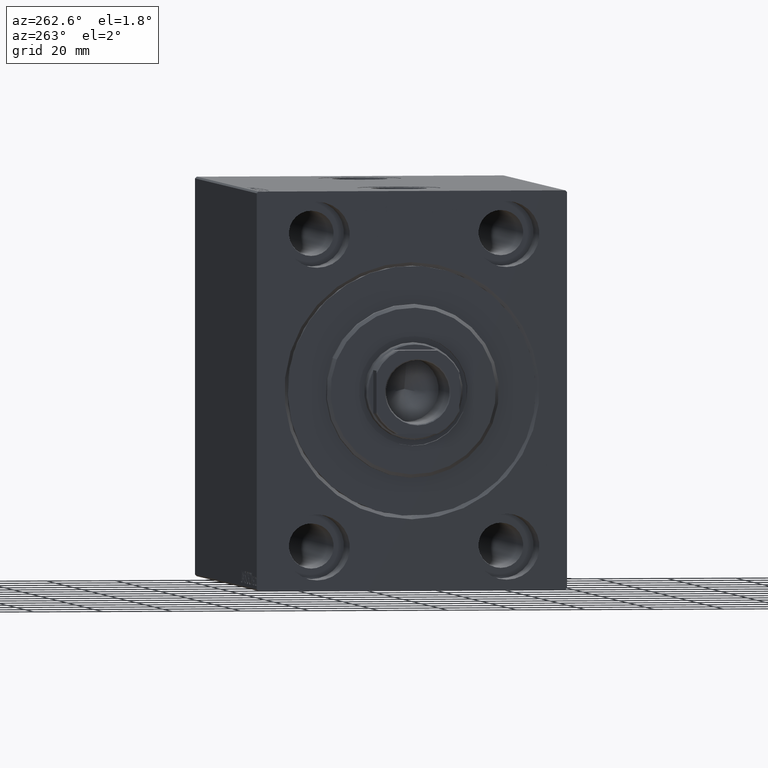
[diagram: clean part render]
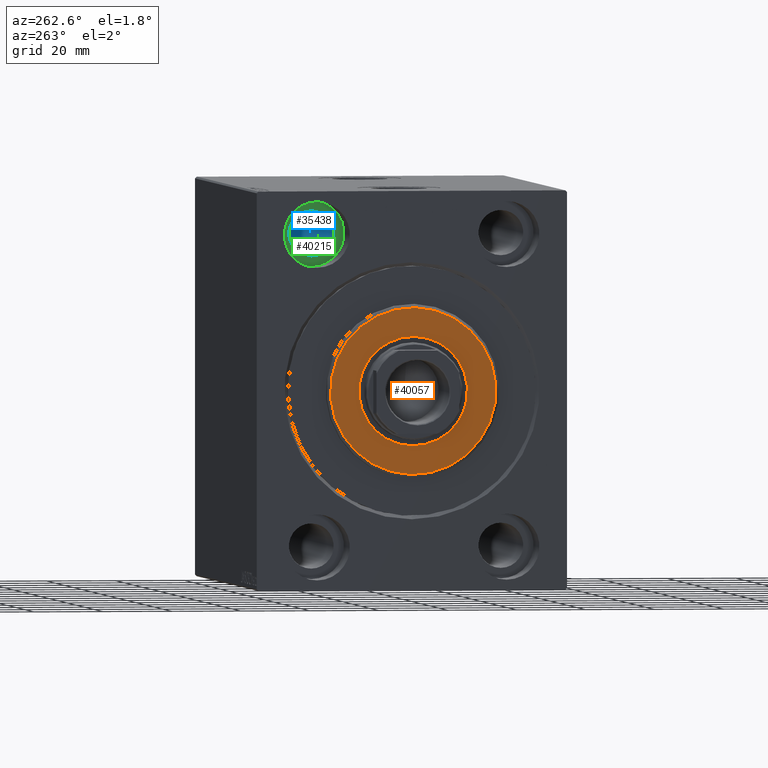
[diagram: same view with three faces highlighted in distinct colors, each labeled with its STEP entity id]
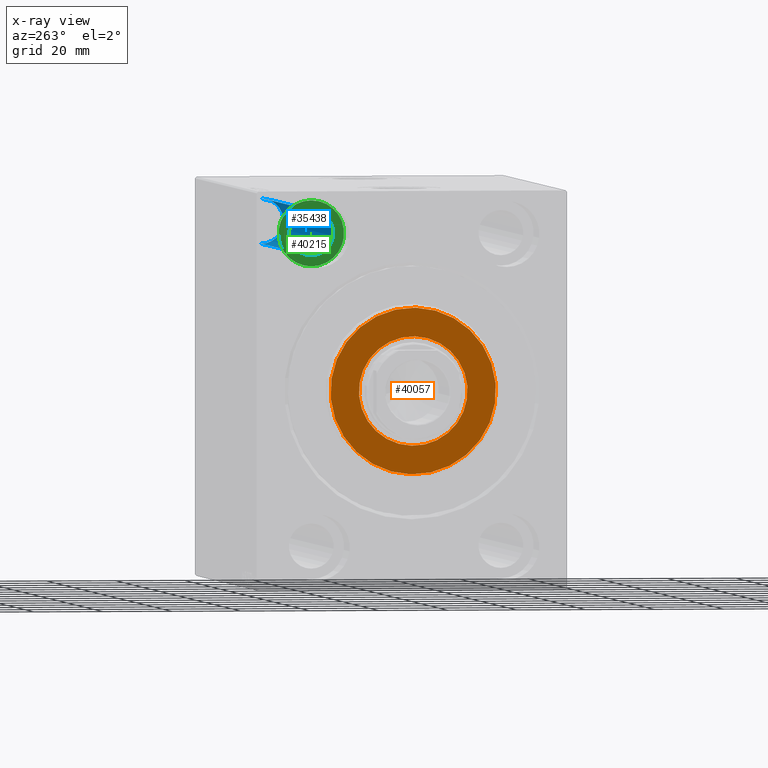
[diagram: x-ray of the same camera — body ghosted, the three highlighted faces saturated]
A machine part, auxiliary view with three faces highlighted in distinct colors.
The next image is the same camera in x-ray (body ghosted, the three faces saturated) — at least one of them is partly hidden behind the body in this view.
Their STEP definitions:

[orange] entity #40057 — the highlighted planar face has unit normal (-1, 0, 0).
#544 = AXIS2_PLACEMENT_3D ( 'NONE', #37187, #30722, #17356 ) ;
#780 = ORIENTED_EDGE ( 'NONE', *, *, #14757, .T. ) ;
#1408 = CIRCLE ( 'NONE', #4243, 15.75000000000000000 ) ;
#3233 = DIRECTION ( 'NONE',  ( 1.000000000000000000, -0.000000000000000000, 0.000000000000000000 ) ) ;
#3324 = CIRCLE ( 'NONE', #20414, 24.00000000000000711 ) ;
#4243 = AXIS2_PLACEMENT_3D ( 'NONE', #19232, #32004, #42038 ) ;
#5821 = FACE_BOUND ( 'NONE', #35213, .T. ) ;
#7381 = CARTESIAN_POINT ( 'NONE',  ( 3.000000000000000000, 0.000000000000000000, 24.00000000000000711 ) ) ;
#8512 = CARTESIAN_POINT ( 'NONE',  ( 3.000000000000000000, 0.000000000000000000, 0.000000000000000000 ) ) ;
#10897 = CARTESIAN_POINT ( 'NONE',  ( 3.000000000000000000, 1.928818708657080950E-15, -15.75000000000000000 ) ) ;
#11426 = VERTEX_POINT ( 'NONE', #10897 ) ;
#12084 = DIRECTION ( 'NONE',  ( 0.000000000000000000, 0.000000000000000000, -1.000000000000000000 ) ) ;
#12301 = DIRECTION ( 'NONE',  ( 1.000000000000000000, -0.000000000000000000, 0.000000000000000000 ) ) ;
#14757 = EDGE_CURVE ( 'NONE', #26495, #30770, #24522, .T. ) ;
#15270 = AXIS2_PLACEMENT_3D ( 'NONE', #40464, #3233, #43385 ) ;
#16828 = DIRECTION ( 'NONE',  ( 0.000000000000000000, 0.000000000000000000, -1.000000000000000000 ) ) ;
#17356 = DIRECTION ( 'NONE',  ( 0.000000000000000000, 0.000000000000000000, -1.000000000000000000 ) ) ;
#17449 = CARTESIAN_POINT ( 'NONE',  ( 3.000000000000000000, 0.000000000000000000, 15.75000000000000000 ) ) ;
#17792 = CARTESIAN_POINT ( 'NONE',  ( 3.000000000000000000, 3.000384657911015469E-15, -24.00000000000000711 ) ) ;
#18007 = VERTEX_POINT ( 'NONE', #17449 ) ;
#18372 = ORIENTED_EDGE ( 'NONE', *, *, #34698, .T. ) ;
#19232 = CARTESIAN_POINT ( 'NONE',  ( 3.000000000000000000, 0.000000000000000000, 0.000000000000000000 ) ) ;
#20173 = CARTESIAN_POINT ( 'NONE',  ( 3.000000000000000000, 0.000000000000000000, 0.000000000000000000 ) ) ;
#20414 = AXIS2_PLACEMENT_3D ( 'NONE', #20173, #41311, #16828 ) ;
#21402 = EDGE_CURVE ( 'NONE', #30770, #26495, #3324, .T. ) ;
#21897 = FACE_OUTER_BOUND ( 'NONE', #34499, .T. ) ;
#23327 = EDGE_CURVE ( 'NONE', #11426, #18007, #32565, .T. ) ;
#24522 = CIRCLE ( 'NONE', #15270, 24.00000000000000711 ) ;
#26495 = VERTEX_POINT ( 'NONE', #7381 ) ;
#30722 = DIRECTION ( 'NONE',  ( -1.000000000000000000, 0.000000000000000000, -0.000000000000000000 ) ) ;
#30770 = VERTEX_POINT ( 'NONE', #17792 ) ;
#32004 = DIRECTION ( 'NONE',  ( -1.000000000000000000, 0.000000000000000000, -0.000000000000000000 ) ) ;
#32565 = CIRCLE ( 'NONE', #544, 15.75000000000000000 ) ;
#34499 = EDGE_LOOP ( 'NONE', ( #780, #42826 ) ) ;
#34698 = EDGE_CURVE ( 'NONE', #18007, #11426, #1408, .T. ) ;
#35213 = EDGE_LOOP ( 'NONE', ( #18372, #39689 ) ) ;
#37187 = CARTESIAN_POINT ( 'NONE',  ( 3.000000000000000000, 0.000000000000000000, 0.000000000000000000 ) ) ;
#39257 = PLANE ( 'NONE',  #39262 ) ;
#39262 = AXIS2_PLACEMENT_3D ( 'NONE', #8512, #12301, #12084 ) ;
#39689 = ORIENTED_EDGE ( 'NONE', *, *, #23327, .T. ) ;
#40057 = ADVANCED_FACE ( 'NONE', ( #21897, #5821 ), #39257, .T. ) ;
#40464 = CARTESIAN_POINT ( 'NONE',  ( 3.000000000000000000, 0.000000000000000000, 0.000000000000000000 ) ) ;
#41311 = DIRECTION ( 'NONE',  ( 1.000000000000000000, -0.000000000000000000, 0.000000000000000000 ) ) ;
#42038 = DIRECTION ( 'NONE',  ( 0.000000000000000000, 0.000000000000000000, -1.000000000000000000 ) ) ;
#42826 = ORIENTED_EDGE ( 'NONE', *, *, #21402, .T. ) ;
#43385 = DIRECTION ( 'NONE',  ( 0.000000000000000000, 0.000000000000000000, -1.000000000000000000 ) ) ;

[blue] entity #35438 — the highlighted cylindrical surface (edge-blend (fillet) strip) has radius 6.5 mm, axis along (-1, -0, -0).
#232 = CARTESIAN_POINT ( 'NONE',  ( 125.0000000000000000, 27.50000000000001066, 51.50000000000000711 ) ) ;
#1462 = EDGE_CURVE ( 'NONE', #18415, #20793, #10328, .T. ) ;
#2064 = CARTESIAN_POINT ( 'NONE',  ( 13.00000000000001066, 27.50000000000001066, 38.50000000000000711 ) ) ;
#2646 = EDGE_LOOP ( 'NONE', ( #25610, #6824, #26002, #17583 ) ) ;
#4269 = LINE ( 'NONE', #10508, #33709 ) ;
#5919 = EDGE_CURVE ( 'NONE', #18415, #44053, #30976, .T. ) ;
#6824 = ORIENTED_EDGE ( 'NONE', *, *, #5919, .T. ) ;
#7347 = CARTESIAN_POINT ( 'NONE',  ( 125.0000000000000000, 27.50000000000001066, 38.50000000000000711 ) ) ;
#7490 = CARTESIAN_POINT ( 'NONE',  ( 138.0000000000000000, 27.50000000000001066, 45.00000000000000711 ) ) ;
#10328 = CIRCLE ( 'NONE', #18173, 6.499999999999999112 ) ;
#10508 = CARTESIAN_POINT ( 'NONE',  ( 138.0000000000000000, 27.50000000000001066, 51.50000000000000711 ) ) ;
#10844 = FACE_OUTER_BOUND ( 'NONE', #2646, .T. ) ;
#12008 = EDGE_CURVE ( 'NONE', #20793, #33075, #4269, .T. ) ;
#12355 = DIRECTION ( 'NONE',  ( -1.000000000000000000, 0.000000000000000000, 0.000000000000000000 ) ) ;
#13922 = CIRCLE ( 'NONE', #26712, 6.499999999999999112 ) ;
#14524 = DIRECTION ( 'NONE',  ( -1.000000000000000000, -0.000000000000000000, -0.000000000000000000 ) ) ;
#17583 = ORIENTED_EDGE ( 'NONE', *, *, #12008, .F. ) ;
#17803 = EDGE_CURVE ( 'NONE', #44053, #33075, #13922, .T. ) ;
#18173 = AXIS2_PLACEMENT_3D ( 'NONE', #29201, #35671, #36108 ) ;
#18415 = VERTEX_POINT ( 'NONE', #7347 ) ;
#18614 = DIRECTION ( 'NONE',  ( 0.000000000000000000, 0.000000000000000000, 1.000000000000000000 ) ) ;
#19239 = AXIS2_PLACEMENT_3D ( 'NONE', #7490, #21105, #34454 ) ;
#20793 = VERTEX_POINT ( 'NONE', #232 ) ;
#21105 = DIRECTION ( 'NONE',  ( -1.000000000000000000, -0.000000000000000000, -0.000000000000000000 ) ) ;
#22952 = CARTESIAN_POINT ( 'NONE',  ( 13.00000000000001066, 27.50000000000001066, 51.50000000000000711 ) ) ;
#24449 = CYLINDRICAL_SURFACE ( 'NONE', #19239, 6.499999999999999112 ) ;
#25610 = ORIENTED_EDGE ( 'NONE', *, *, #1462, .F. ) ;
#26002 = ORIENTED_EDGE ( 'NONE', *, *, #17803, .T. ) ;
#26712 = AXIS2_PLACEMENT_3D ( 'NONE', #29276, #12355, #18614 ) ;
#29201 = CARTESIAN_POINT ( 'NONE',  ( 125.0000000000000000, 27.50000000000001066, 45.00000000000000711 ) ) ;
#29276 = CARTESIAN_POINT ( 'NONE',  ( 13.00000000000001066, 27.50000000000001066, 45.00000000000000711 ) ) ;
#30976 = LINE ( 'NONE', #38763, #40371 ) ;
#33075 = VERTEX_POINT ( 'NONE', #22952 ) ;
#33709 = VECTOR ( 'NONE', #14524, 1000.000000000000000 ) ;
#34454 = DIRECTION ( 'NONE',  ( 0.000000000000000000, 0.000000000000000000, 1.000000000000000000 ) ) ;
#35438 = ADVANCED_FACE ( 'NONE', ( #10844 ), #24449, .F. ) ;
#35671 = DIRECTION ( 'NONE',  ( -1.000000000000000000, -0.000000000000000000, -0.000000000000000000 ) ) ;
#36108 = DIRECTION ( 'NONE',  ( 0.000000000000000000, 0.000000000000000000, -1.000000000000000000 ) ) ;
#38763 = CARTESIAN_POINT ( 'NONE',  ( 138.0000000000000000, 27.50000000000001066, 38.50000000000000711 ) ) ;
#40371 = VECTOR ( 'NONE', #41897, 1000.000000000000000 ) ;
#41897 = DIRECTION ( 'NONE',  ( -1.000000000000000000, -0.000000000000000000, -0.000000000000000000 ) ) ;
#44053 = VERTEX_POINT ( 'NONE', #2064 ) ;

[green] entity #40215 — the highlighted planar face has unit normal (-1, 0, 0).
#2064 = CARTESIAN_POINT ( 'NONE',  ( 13.00000000000001066, 27.50000000000001066, 38.50000000000000711 ) ) ;
#2291 = DIRECTION ( 'NONE',  ( 0.000000000000000000, 0.000000000000000000, 1.000000000000000000 ) ) ;
#2811 = AXIS2_PLACEMENT_3D ( 'NONE', #27827, #3539, #31607 ) ;
#3170 = CARTESIAN_POINT ( 'NONE',  ( 13.00000000000000000, 27.50000000000001066, 45.00000000000000711 ) ) ;
#3539 = DIRECTION ( 'NONE',  ( -1.000000000000000000, 0.000000000000000000, 0.000000000000000000 ) ) ;
#3541 = ORIENTED_EDGE ( 'NONE', *, *, #17803, .F. ) ;
#4730 = VERTEX_POINT ( 'NONE', #20830 ) ;
#6907 = CIRCLE ( 'NONE', #12626, 9.500000000000001776 ) ;
#9934 = VERTEX_POINT ( 'NONE', #25738 ) ;
#12355 = DIRECTION ( 'NONE',  ( -1.000000000000000000, 0.000000000000000000, 0.000000000000000000 ) ) ;
#12626 = AXIS2_PLACEMENT_3D ( 'NONE', #31626, #38090, #27842 ) ;
#12969 = ORIENTED_EDGE ( 'NONE', *, *, #29606, .T. ) ;
#13922 = CIRCLE ( 'NONE', #26712, 6.499999999999999112 ) ;
#16082 = PLANE ( 'NONE',  #20070 ) ;
#16529 = FACE_OUTER_BOUND ( 'NONE', #40265, .T. ) ;
#17803 = EDGE_CURVE ( 'NONE', #44053, #33075, #13922, .T. ) ;
#18614 = DIRECTION ( 'NONE',  ( 0.000000000000000000, 0.000000000000000000, 1.000000000000000000 ) ) ;
#18882 = ORIENTED_EDGE ( 'NONE', *, *, #34143, .F. ) ;
#20070 = AXIS2_PLACEMENT_3D ( 'NONE', #29661, #20086, #27194 ) ;
#20086 = DIRECTION ( 'NONE',  ( -1.000000000000000000, 0.000000000000000000, 0.000000000000000000 ) ) ;
#20338 = DIRECTION ( 'NONE',  ( -1.000000000000000000, 0.000000000000000000, 0.000000000000000000 ) ) ;
#20742 = EDGE_LOOP ( 'NONE', ( #18882, #3541 ) ) ;
#20830 = CARTESIAN_POINT ( 'NONE',  ( 13.00000000000000000, 27.50000000000001066, 54.50000000000000711 ) ) ;
#21214 = CIRCLE ( 'NONE', #23354, 9.500000000000001776 ) ;
#22952 = CARTESIAN_POINT ( 'NONE',  ( 13.00000000000001066, 27.50000000000001066, 51.50000000000000711 ) ) ;
#23354 = AXIS2_PLACEMENT_3D ( 'NONE', #3170, #20338, #2291 ) ;
#25738 = CARTESIAN_POINT ( 'NONE',  ( 13.00000000000000000, 27.50000000000001066, 35.50000000000000711 ) ) ;
#26712 = AXIS2_PLACEMENT_3D ( 'NONE', #29276, #12355, #18614 ) ;
#26896 = EDGE_CURVE ( 'NONE', #9934, #4730, #6907, .T. ) ;
#27194 = DIRECTION ( 'NONE',  ( 0.000000000000000000, 0.000000000000000000, 1.000000000000000000 ) ) ;
#27827 = CARTESIAN_POINT ( 'NONE',  ( 13.00000000000001066, 27.50000000000001066, 45.00000000000000711 ) ) ;
#27842 = DIRECTION ( 'NONE',  ( 0.000000000000000000, 0.000000000000000000, 1.000000000000000000 ) ) ;
#29276 = CARTESIAN_POINT ( 'NONE',  ( 13.00000000000001066, 27.50000000000001066, 45.00000000000000711 ) ) ;
#29606 = EDGE_CURVE ( 'NONE', #4730, #9934, #21214, .T. ) ;
#29661 = CARTESIAN_POINT ( 'NONE',  ( 13.00000000000000000, 0.000000000000000000, 0.000000000000000000 ) ) ;
#31607 = DIRECTION ( 'NONE',  ( 0.000000000000000000, 0.000000000000000000, 1.000000000000000000 ) ) ;
#31626 = CARTESIAN_POINT ( 'NONE',  ( 13.00000000000000000, 27.50000000000001066, 45.00000000000000711 ) ) ;
#31809 = ORIENTED_EDGE ( 'NONE', *, *, #26896, .T. ) ;
#33075 = VERTEX_POINT ( 'NONE', #22952 ) ;
#33884 = FACE_BOUND ( 'NONE', #20742, .T. ) ;
#34143 = EDGE_CURVE ( 'NONE', #33075, #44053, #43393, .T. ) ;
#38090 = DIRECTION ( 'NONE',  ( -1.000000000000000000, 0.000000000000000000, 0.000000000000000000 ) ) ;
#40215 = ADVANCED_FACE ( 'NONE', ( #33884, #16529 ), #16082, .T. ) ;
#40265 = EDGE_LOOP ( 'NONE', ( #12969, #31809 ) ) ;
#43393 = CIRCLE ( 'NONE', #2811, 6.499999999999999112 ) ;
#44053 = VERTEX_POINT ( 'NONE', #2064 ) ;